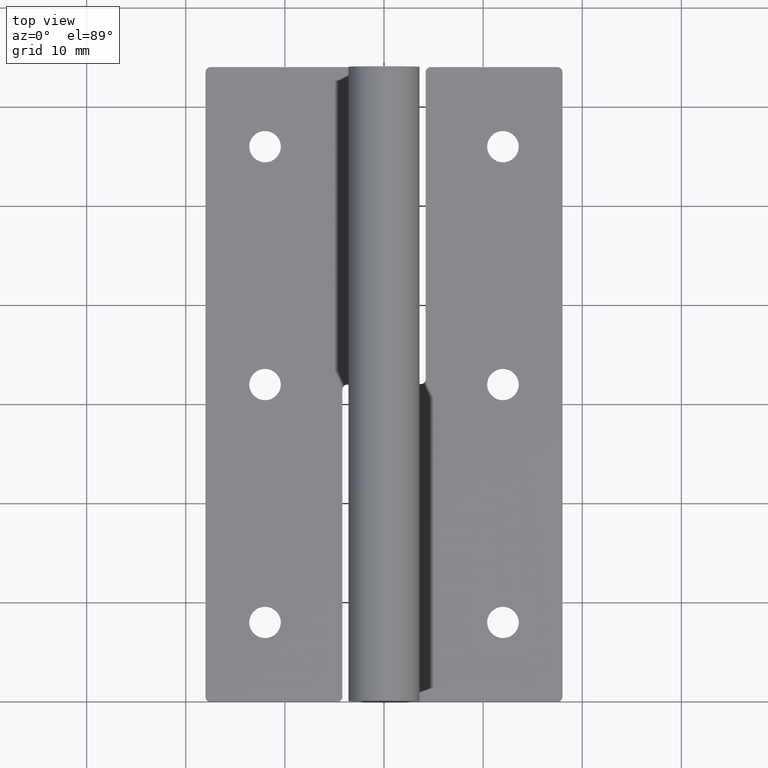
[diagram: clean part render]
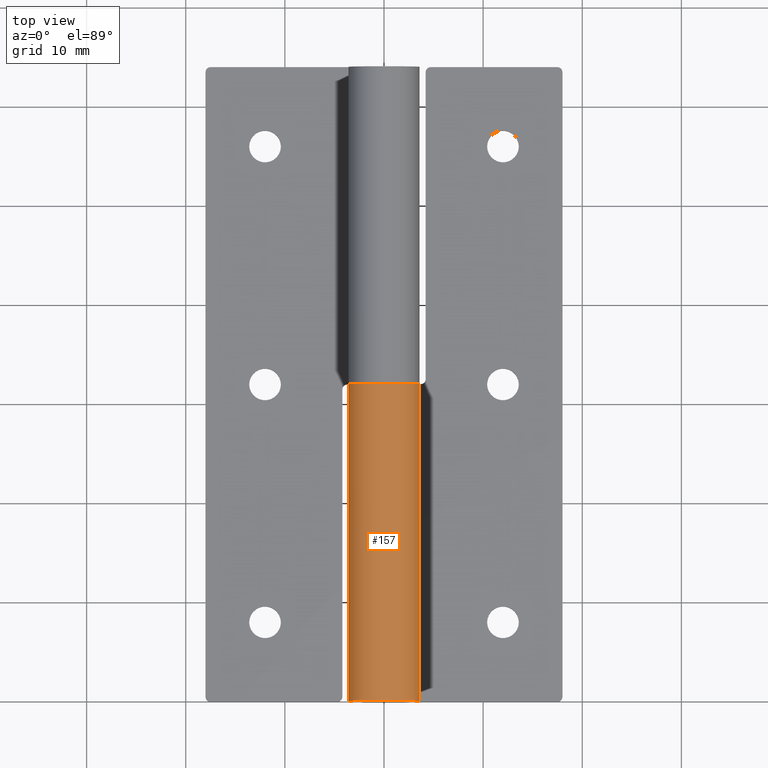
[diagram: same view with one face highlighted and labeled with its STEP entity id]
A machine part, top view. The second image highlights one B-rep face of the part: STEP entity #157.
In plain terms, the highlighted cylindrical surface (edge-blend (fillet) strip) has radius 3.6 mm, axis along (0, 1, 0).
Its self-contained STEP definition (entity closure, byte-faithful):
#157=ADVANCED_FACE('',(#282),#281,.T.);
#281=CYLINDRICAL_SURFACE('',#716,3.60000000000E+00);
#282=FACE_OUTER_BOUND('',#717,.T.);
#713=CARTESIAN_POINT('',(0.00000000000E+00,1.00000000000E+03,0.00000000000E+00));
#714=DIRECTION('',(-0.00000000000E+00,1.00000000000E+00,0.00000000000E+00));
#715=DIRECTION('',(4.77158760260E-01,0.00000000000E+00,-8.78817112662E-01));
#716=AXIS2_PLACEMENT_3D('',#713,#714,#715);
#717=EDGE_LOOP('',(#977,#978,#979,#980));
#977=ORIENTED_EDGE('',*,*,#1201,.F.);
#978=ORIENTED_EDGE('',*,*,#1182,.T.);
#979=ORIENTED_EDGE('',*,*,#1202,.F.);
#980=ORIENTED_EDGE('',*,*,#1199,.F.);
#1182=EDGE_CURVE('',#1448,#1441,#1449,.T.);
#1199=EDGE_CURVE('',#1555,#1562,#1563,.T.);
#1201=EDGE_CURVE('',#1448,#1555,#1575,.T.);
#1202=EDGE_CURVE('',#1562,#1441,#1581,.T.);
#1441=VERTEX_POINT('',#2168);
#1448=VERTEX_POINT('',#2172);
#1449=LINE('',#2173,#2174);
#1555=VERTEX_POINT('',#2240);
#1562=VERTEX_POINT('',#2244);
#1563=LINE('',#2245,#2246);
#1575=CIRCLE('',#2254,3.60000000000E+00);
#1581=CIRCLE('',#2258,3.60000000000E+00);
#2168=CARTESIAN_POINT('',(-6.61309271540E-16,0.00000000000E+00,-3.60000000000E+00));
#2172=CARTESIAN_POINT('',(0.00000000000E+00,3.20000000000E+01,-3.60000000000E+00));
#2173=CARTESIAN_POINT('',(-6.61309271540E-16,3.20000000000E+01,-3.60000000000E+00));
#2174=VECTOR('',#2175,3.20000000000E+01);
#2175=DIRECTION('',(0.00000000000E+00,-1.00000000000E+00,0.00000000000E+00));
#2240=CARTESIAN_POINT('',(2.99681200706E+00,3.20000000000E+01,-1.99477261721E+00));
#2244=CARTESIAN_POINT('',(2.99681200706E+00,0.00000000000E+00,-1.99477261721E+00));
#2245=CARTESIAN_POINT('',(2.99681200706E+00,3.20000000000E+01,-1.99477261721E+00));
#2246=VECTOR('',#2247,3.20000000000E+01);
#2247=DIRECTION('',(0.00000000000E+00,-1.00000000000E+00,0.00000000000E+00));
#2251=CARTESIAN_POINT('',(0.00000000000E+00,3.20000000000E+01,0.00000000000E+00));
#2252=DIRECTION('',(-0.00000000000E+00,1.00000000000E+00,0.00000000000E+00));
#2253=DIRECTION('',(8.32447779738E-01,0.00000000000E+00,-5.54103504780E-01));
#2254=AXIS2_PLACEMENT_3D('',#2251,#2252,#2253);
#2255=CARTESIAN_POINT('',(0.00000000000E+00,0.00000000000E+00,0.00000000000E+00));
#2256=DIRECTION('',(0.00000000000E+00,-1.00000000000E+00,0.00000000000E+00));
#2257=DIRECTION('',(-0.00000000000E+00,-0.00000000000E+00,-1.00000000000E+00));
#2258=AXIS2_PLACEMENT_3D('',#2255,#2256,#2257);